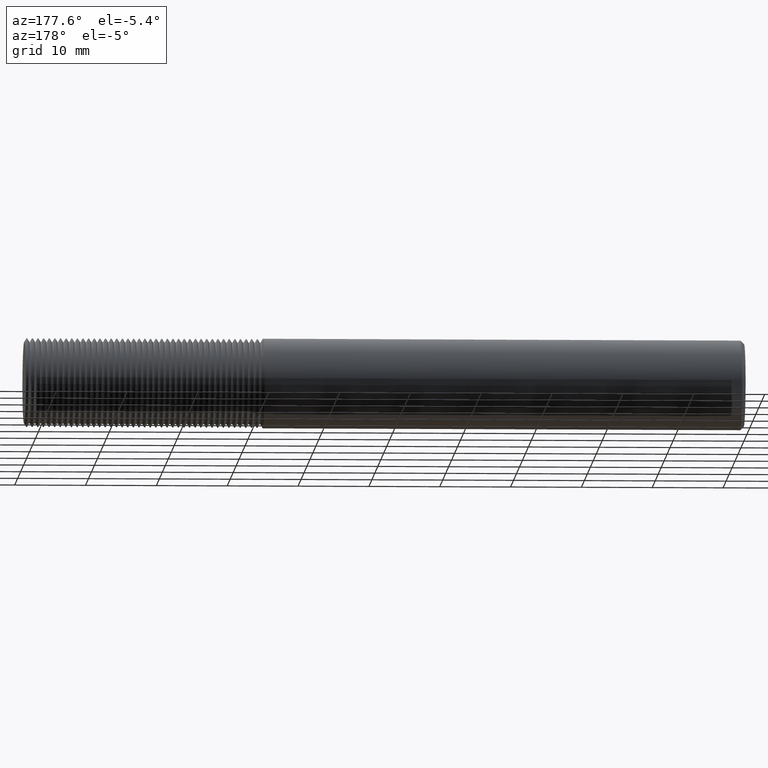
[diagram: clean part render]
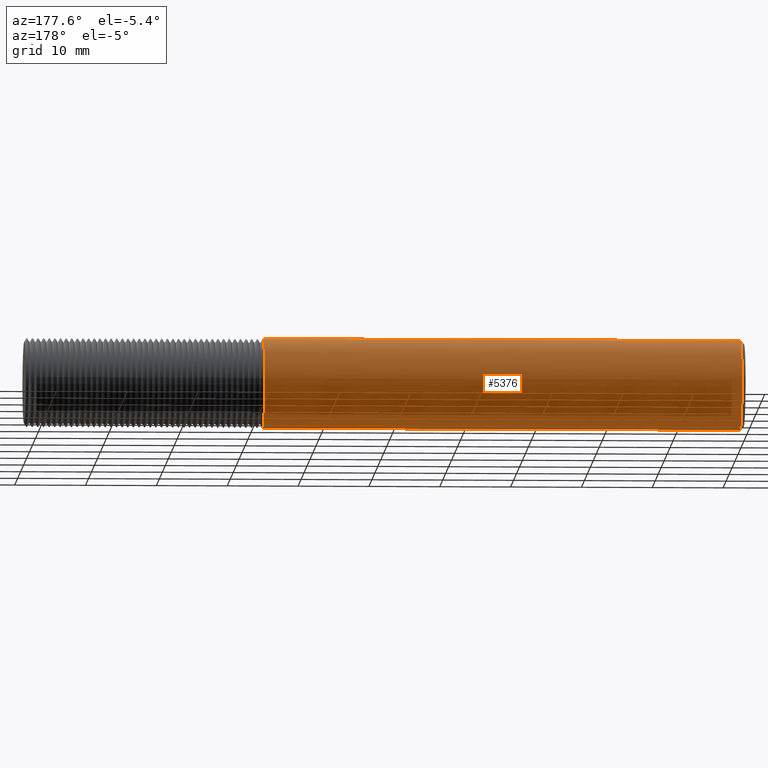
[diagram: same view with one face highlighted and labeled with its STEP entity id]
A machine part, auxiliary view. The second image highlights one B-rep face of the part: STEP entity #5376.
In plain terms, the highlighted cylindrical surface (partial cylindrical patch) has radius 6.3462 mm, axis along (1, -0, -0).
Its self-contained STEP definition (entity closure, byte-faithful):
#1261 = CIRCLE ( 'NONE', #3657, 0.2498499999999999888 ) ;
#1366 = CIRCLE ( 'NONE', #3615, 0.2498499999999999888 ) ;
#1811 = VERTEX_POINT ( 'NONE', #4094 ) ;
#1852 = CARTESIAN_POINT ( 'NONE',  ( 4.000000000000000000, 0.000000000000000000, 0.000000000000000000 ) ) ;
#2002 = VERTEX_POINT ( 'NONE', #3988 ) ;
#2741 = CARTESIAN_POINT ( 'NONE',  ( 0.01999999999999978531, 3.059780027669661931E-17, 0.2498499999999999888 ) ) ;
#2809 = DIRECTION ( 'NONE',  ( 0.000000000000000000, 0.000000000000000000, 1.000000000000000000 ) ) ;
#2838 = ORIENTED_EDGE ( 'NONE', *, *, #5711, .T. ) ;
#3286 = CARTESIAN_POINT ( 'NONE',  ( 0.01999999999999978531, 0.000000000000000000, 0.000000000000000000 ) ) ;
#3433 = CARTESIAN_POINT ( 'NONE',  ( 0.01999999999999978531, 0.000000000000000000, -0.2498499999999999888 ) ) ;
#3615 = AXIS2_PLACEMENT_3D ( 'NONE', #8106, #4004, #2809 ) ;
#3657 = AXIS2_PLACEMENT_3D ( 'NONE', #3286, #4560, #6581 ) ;
#3728 = EDGE_CURVE ( 'NONE', #5163, #2002, #6706, .T. ) ;
#3988 = CARTESIAN_POINT ( 'NONE',  ( 2.673500742313569489, 0.000000000000000000, 0.2498499999999996557 ) ) ;
#3993 = DIRECTION ( 'NONE',  ( 1.000000000000000000, -0.000000000000000000, -0.000000000000000000 ) ) ;
#4004 = DIRECTION ( 'NONE',  ( -1.000000000000000000, -0.000000000000000000, -0.000000000000000000 ) ) ;
#4094 = CARTESIAN_POINT ( 'NONE',  ( 2.673500742313569489, 3.059780027669657616E-17, -0.2498499999999996557 ) ) ;
#4172 = ORIENTED_EDGE ( 'NONE', *, *, #7225, .T. ) ;
#4255 = VECTOR ( 'NONE', #4546, 39.37007874015748143 ) ;
#4453 = ORIENTED_EDGE ( 'NONE', *, *, #3728, .T. ) ;
#4540 = DIRECTION ( 'NONE',  ( 1.000000000000000000, -0.000000000000000000, -0.000000000000000000 ) ) ;
#4546 = DIRECTION ( 'NONE',  ( 1.000000000000000000, -0.000000000000000000, -0.000000000000000000 ) ) ;
#4560 = DIRECTION ( 'NONE',  ( 1.000000000000000000, -0.000000000000000000, -0.000000000000000000 ) ) ;
#5163 = VERTEX_POINT ( 'NONE', #2741 ) ;
#5376 = ADVANCED_FACE ( 'NONE', ( #7774 ), #7949, .T. ) ;
#5711 = EDGE_CURVE ( 'NONE', #2002, #1811, #1366, .T. ) ;
#6146 = CARTESIAN_POINT ( 'NONE',  ( 4.000000000000000000, 0.000000000000000000, -0.2498499999999999888 ) ) ;
#6148 = EDGE_CURVE ( 'NONE', #6562, #1811, #8014, .T. ) ;
#6308 = ORIENTED_EDGE ( 'NONE', *, *, #6148, .F. ) ;
#6562 = VERTEX_POINT ( 'NONE', #3433 ) ;
#6581 = DIRECTION ( 'NONE',  ( 0.000000000000000000, 0.000000000000000000, 1.000000000000000000 ) ) ;
#6614 = CARTESIAN_POINT ( 'NONE',  ( 4.000000000000000000, 3.059780027669661931E-17, 0.2498499999999999888 ) ) ;
#6706 = LINE ( 'NONE', #6614, #4255 ) ;
#7018 = VECTOR ( 'NONE', #3993, 39.37007874015748143 ) ;
#7147 = DIRECTION ( 'NONE',  ( 0.000000000000000000, 0.000000000000000000, -1.000000000000000000 ) ) ;
#7163 = EDGE_LOOP ( 'NONE', ( #4172, #4453, #2838, #6308 ) ) ;
#7225 = EDGE_CURVE ( 'NONE', #6562, #5163, #1261, .T. ) ;
#7774 = FACE_OUTER_BOUND ( 'NONE', #7163, .T. ) ;
#7806 = AXIS2_PLACEMENT_3D ( 'NONE', #1852, #4540, #7147 ) ;
#7949 = CYLINDRICAL_SURFACE ( 'NONE', #7806, 0.2498499999999999888 ) ;
#8014 = LINE ( 'NONE', #6146, #7018 ) ;
#8106 = CARTESIAN_POINT ( 'NONE',  ( 2.673500742313569489, 0.000000000000000000, 0.000000000000000000 ) ) ;